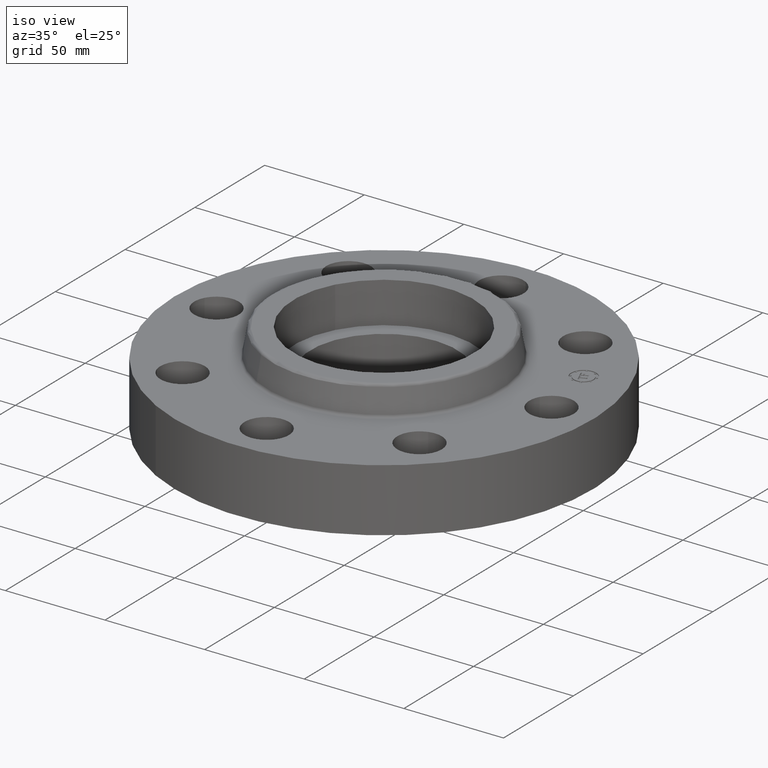
[diagram: clean part render]
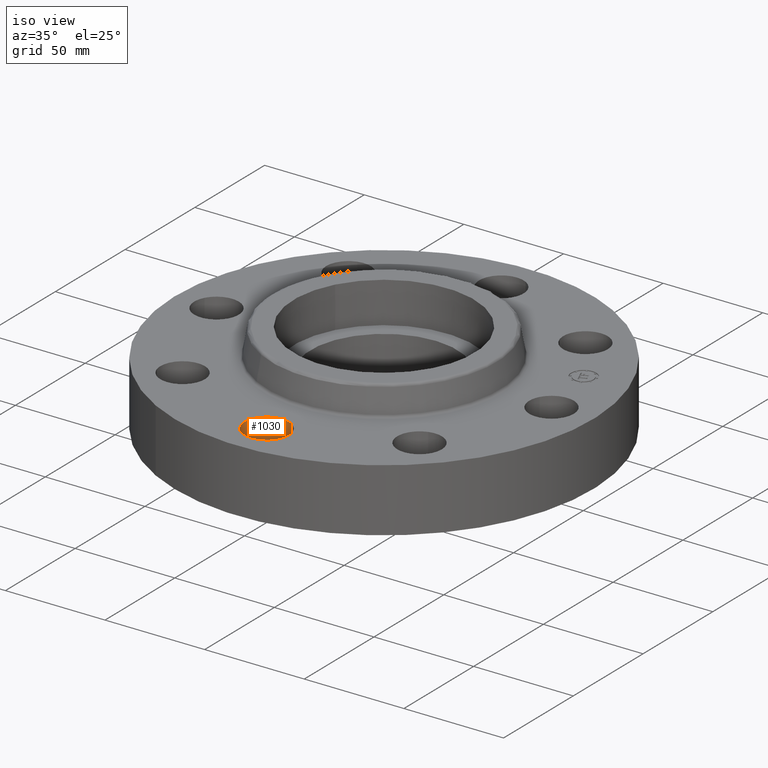
[diagram: same view with one face highlighted and labeled with its STEP entity id]
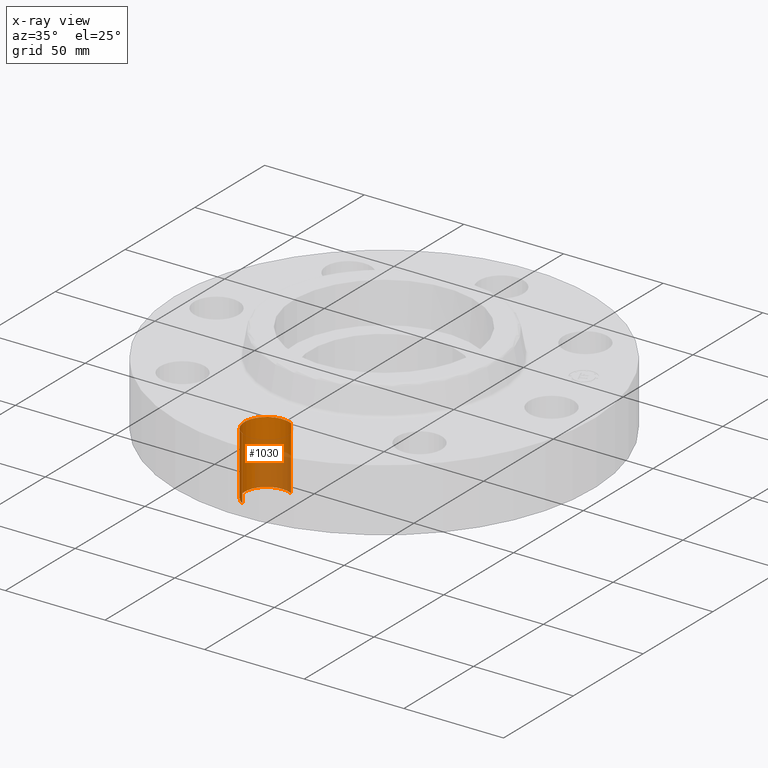
[diagram: x-ray of the same camera — body ghosted, the highlighted face saturated]
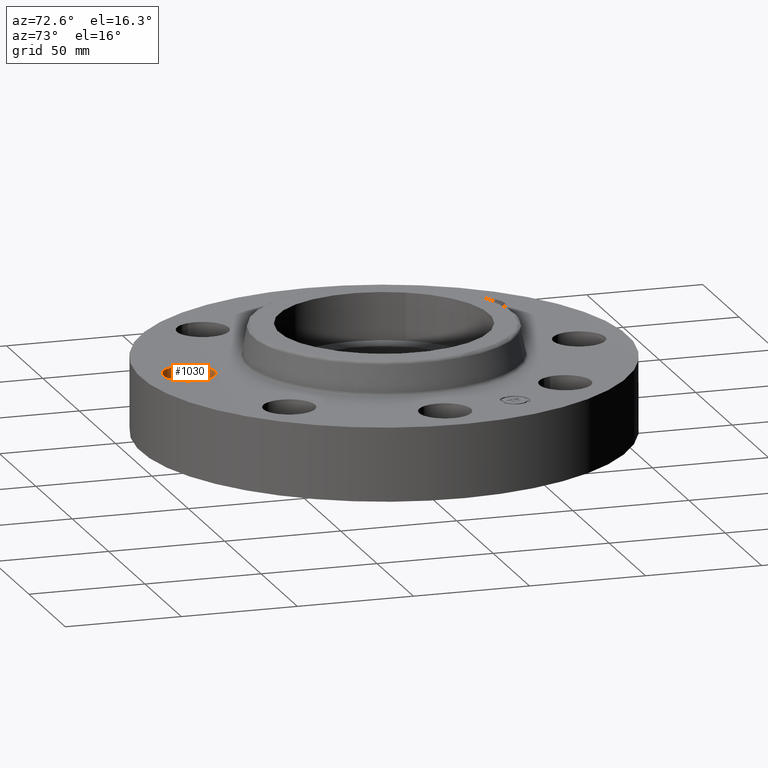
[diagram: same view with one face highlighted and labeled with its STEP entity id]
A machine part, iso view. The second image highlights one B-rep face of the part: STEP entity #1030.
The next image is the same camera in x-ray: the body ghosted, the highlighted face saturated — about 38% of this face is hidden behind the body in this view.
A second angle (auxiliary view) of the same face is appended — the face is thin or edge-on in the first view.
In plain terms, the highlighted cylindrical surface (edge-blend (fillet) strip) has radius 11.176 mm, axis along (0, 0, -1).
Its self-contained STEP definition (entity closure, byte-faithful):
#575=AXIS2_PLACEMENT_3D('Circle Axis2P3D',#573,#574,$) ;
#1005=AXIS2_PLACEMENT_3D('Cylinder Axis2P3D',#1002,#1003,#1004) ;
#568=CARTESIAN_POINT('Vertex',(0.210947237,-2.92386367278,0.)) ;
#570=CARTESIAN_POINT('Vertex',(-0.210947237,-3.69613632727,0.)) ;
#573=CARTESIAN_POINT('Axis2P3D Location',(3.49676543189E-017,-3.31000000003,0.)) ;
#969=CARTESIAN_POINT('Line Origine',(0.210947236987,-2.92386367278,0.624999999989)) ;
#973=CARTESIAN_POINT('Vertex',(0.210947237,-2.92386367279,1.25000000001)) ;
#976=CARTESIAN_POINT('Line Origine',(-0.210947236987,-3.69613632724,0.624999999989)) ;
#980=CARTESIAN_POINT('Vertex',(-0.210947236987,-3.69613632724,1.24999999999)) ;
#1002=CARTESIAN_POINT('Axis2P3D Location',(-3.56803423843E-016,-3.31000000001,1.24606299213)) ;
#1008=CARTESIAN_POINT('Control Point',(-0.210947236987,-3.69613632724,1.25000000001)) ;
#1009=CARTESIAN_POINT('Control Point',(-0.271601389433,-3.66300081274,1.25000000001)) ;
#1010=CARTESIAN_POINT('Control Point',(-0.325749398821,-3.61795588326,1.25000000001)) ;
#1011=CARTESIAN_POINT('Control Point',(-0.370262840224,-3.5626953225,1.25000000001)) ;
#1012=CARTESIAN_POINT('Control Point',(-0.435223603166,-3.43769808393,1.25)) ;
#1013=CARTESIAN_POINT('Control Point',(-0.448097302225,-3.29741808449,1.25)) ;
#1014=CARTESIAN_POINT('Control Point',(-0.440497941251,-3.22686721097,1.25)) ;
#1015=CARTESIAN_POINT('Control Point',(-0.398045742217,-3.09254661997,1.25)) ;
#1016=CARTESIAN_POINT('Control Point',(-0.307955883249,-2.98425060119,1.25)) ;
#1017=CARTESIAN_POINT('Control Point',(-0.252695322491,-2.93973715979,1.25)) ;
#1018=CARTESIAN_POINT('Control Point',(-0.127698083922,-2.87477639684,1.24999999999)) ;
#1019=CARTESIAN_POINT('Control Point',(0.0125819155223,-2.86190269778,1.24999999999)) ;
#1020=CARTESIAN_POINT('Control Point',(0.0831327890369,-2.86950205876,1.24999999999)) ;
#1021=CARTESIAN_POINT('Control Point',(0.150293084541,-2.89072815828,1.24999999999)) ;
#1022=CARTESIAN_POINT('Control Point',(0.210947236987,-2.92386367278,1.24999999999)) ;
#574=DIRECTION('Axis2P3D Direction',(0.,0.,-0.0393700787402)) ;
#970=DIRECTION('Vector Direction',(0.,0.,-0.0393700787402)) ;
#977=DIRECTION('Vector Direction',(0.,0.,-0.0393700787402)) ;
#1003=DIRECTION('Axis2P3D Direction',(0.,0.,-0.0393700787402)) ;
#1004=DIRECTION('Axis2P3D XDirection',(-0.0188750212049,-0.0345504945626,0.)) ;
#971=VECTOR('Line Direction',#970,0.0393700787402) ;
#978=VECTOR('Line Direction',#977,0.0393700787402) ;
#1025=ORIENTED_EDGE('',*,*,#982,.F.) ;
#1026=ORIENTED_EDGE('',*,*,#577,.T.) ;
#1027=ORIENTED_EDGE('',*,*,#975,.T.) ;
#1028=ORIENTED_EDGE('',*,*,#1023,.F.) ;
#1030=ADVANCED_FACE('PartBody',(#1029),#1006,.F.) ;
#1007=B_SPLINE_CURVE_WITH_KNOTS('',5,(#1008,#1009,#1010,#1011,#1012,#1013,#1014,#1015,#1016,#1017,#1018,#1019,#1020,#1021,#1022),.UNSPECIFIED.,.F.,.U.,(6,3,3,3,6),(-17.5552197483,-8.77760987417,0.,8.77760987417,17.5552197483),.UNSPECIFIED.) ;
#576=CIRCLE('generated circle',#575,0.44000000002) ;
#1006=CYLINDRICAL_SURFACE('generated cylinder',#1005,0.440000000002) ;
#577=EDGE_CURVE('',#571,#569,#576,.T.) ;
#975=EDGE_CURVE('',#569,#974,#972,.F.) ;
#982=EDGE_CURVE('',#571,#981,#979,.F.) ;
#1023=EDGE_CURVE('',#981,#974,#1007,.T.) ;
#1024=EDGE_LOOP('',(#1025,#1026,#1027,#1028)) ;
#1029=FACE_OUTER_BOUND('',#1024,.T.) ;
#972=LINE('Line',#969,#971) ;
#979=LINE('Line',#976,#978) ;
#569=VERTEX_POINT('',#568) ;
#571=VERTEX_POINT('',#570) ;
#974=VERTEX_POINT('',#973) ;
#981=VERTEX_POINT('',#980) ;